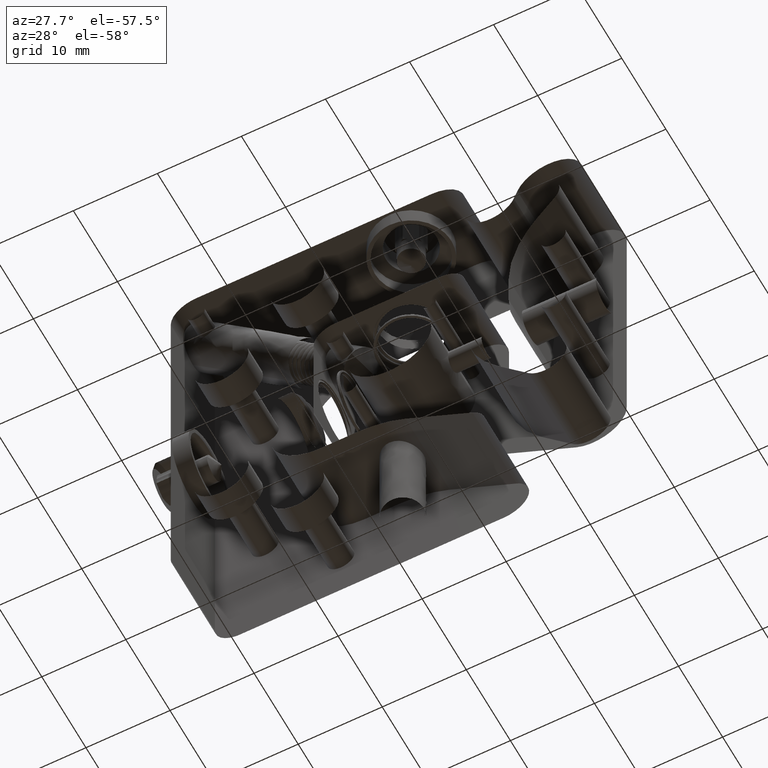
[diagram: clean part render]
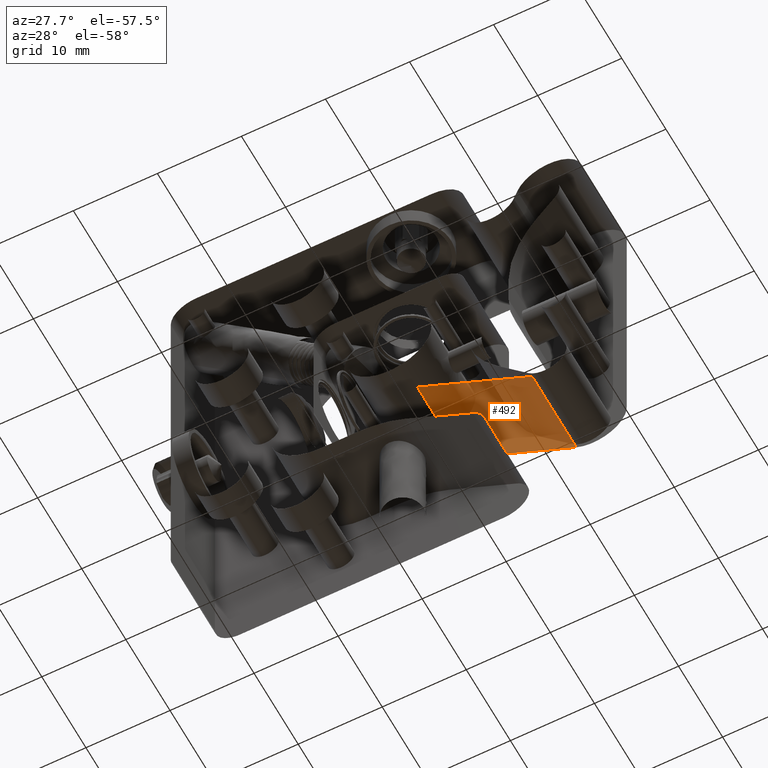
[diagram: same view with one face highlighted and labeled with its STEP entity id]
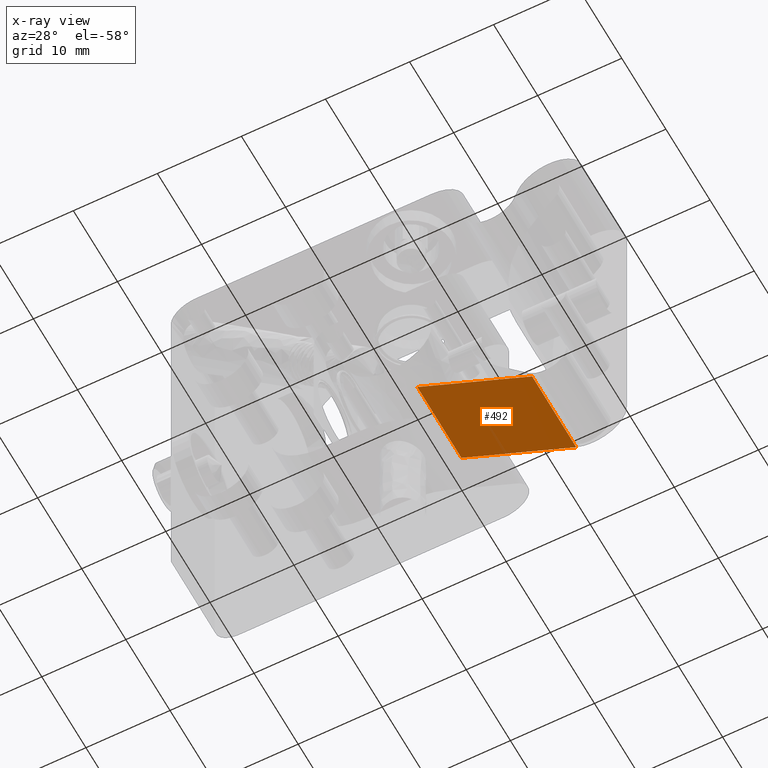
[diagram: x-ray of the same camera — body ghosted, the highlighted face saturated]
A machine part, auxiliary view. The second image highlights one B-rep face of the part: STEP entity #492.
The next image is the same camera in x-ray: the body ghosted, the highlighted face saturated — about 1% of this face is hidden behind the body in this view.
In plain terms, the highlighted face is a freeform B-spline surface patch.
Its self-contained STEP definition (entity closure, byte-faithful):
#492=ADVANCED_FACE('',(#773),#10298,.T.);
#773=FACE_OUTER_BOUND('',#1081,.T.);
#1081=EDGE_LOOP('',(#2175,#2176,#2177,#2178));
#2175=ORIENTED_EDGE('',*,*,#8830,.T.);
#2176=ORIENTED_EDGE('',*,*,#8831,.T.);
#2177=ORIENTED_EDGE('',*,*,#8832,.T.);
#2178=ORIENTED_EDGE('',*,*,#8828,.F.);
#3695=PCURVE('',#10448,#5218);
#3698=PCURVE('',#10298,#5221);
#3699=PCURVE('',#10298,#5222);
#3700=PCURVE('',#10298,#5223);
#3701=PCURVE('',#10298,#5224);
#3704=PCURVE('',#10449,#5227);
#3794=PCURVE('',#10307,#5317);
#3854=PCURVE('',#10308,#5377);
#5218=DEFINITIONAL_REPRESENTATION('',(#6929),#38234);
#5221=DEFINITIONAL_REPRESENTATION('',(#6933),#38234);
#5222=DEFINITIONAL_REPRESENTATION('',(#6935),#38234);
#5223=DEFINITIONAL_REPRESENTATION('',(#6937),#38234);
#5224=DEFINITIONAL_REPRESENTATION('',(#6938),#38234);
#5227=DEFINITIONAL_REPRESENTATION('',(#6942),#38234);
#5317=DEFINITIONAL_REPRESENTATION('',(#7035),#38234);
#5377=DEFINITIONAL_REPRESENTATION('',(#7054),#38234);
#6928=B_SPLINE_CURVE_WITH_KNOTS('',1,(#18635,#18636),.UNSPECIFIED.,.F.,
 .F.,(2,2),(-10.,0.),.UNSPECIFIED.);
#6929=B_SPLINE_CURVE_WITH_KNOTS('',1,(#18637,#18638),.UNSPECIFIED.,.F.,
 .F.,(2,2),(-10.,0.),.UNSPECIFIED.);
#6932=B_SPLINE_CURVE_WITH_KNOTS('',1,(#18648,#18649),.UNSPECIFIED.,.F.,
 .F.,(2,2),(0.,15.7790786806516),.UNSPECIFIED.);
#6933=B_SPLINE_CURVE_WITH_KNOTS('',1,(#18650,#18651),.UNSPECIFIED.,.F.,
 .F.,(2,2),(0.,15.7790786806516),.UNSPECIFIED.);
#6934=B_SPLINE_CURVE_WITH_KNOTS('',1,(#18652,#18653),.UNSPECIFIED.,.F.,
 .F.,(2,2),(-10.,0.),.UNSPECIFIED.);
#6935=B_SPLINE_CURVE_WITH_KNOTS('',1,(#18654,#18655),.UNSPECIFIED.,.F.,
 .F.,(2,2),(-10.,0.),.UNSPECIFIED.);
#6936=B_SPLINE_CURVE_WITH_KNOTS('',1,(#18656,#18657),.UNSPECIFIED.,.F.,
 .F.,(2,2),(0.,15.7790786806516),.UNSPECIFIED.);
#6937=B_SPLINE_CURVE_WITH_KNOTS('',1,(#18658,#18659),.UNSPECIFIED.,.F.,
 .F.,(2,2),(0.,15.7790786806516),.UNSPECIFIED.);
#6938=B_SPLINE_CURVE_WITH_KNOTS('',1,(#18660,#18661),.UNSPECIFIED.,.F.,
 .F.,(2,2),(-10.,0.),.UNSPECIFIED.);
#6942=B_SPLINE_CURVE_WITH_KNOTS('',1,(#18671,#18672),.UNSPECIFIED.,.F.,
 .F.,(2,2),(-10.,0.),.UNSPECIFIED.);
#7035=B_SPLINE_CURVE_WITH_KNOTS('',1,(#18983,#18984),.UNSPECIFIED.,.F.,
 .F.,(2,2),(0.,15.7790786806516),.UNSPECIFIED.);
#7054=B_SPLINE_CURVE_WITH_KNOTS('',1,(#19192,#19193),.UNSPECIFIED.,.F.,
 .F.,(2,2),(0.,15.7790786806516),.UNSPECIFIED.);
#8024=SURFACE_CURVE('',#6928,(#3695,#3701),.PCURVE_S1.);
#8026=SURFACE_CURVE('',#6932,(#3698,#3854),.PCURVE_S1.);
#8027=SURFACE_CURVE('',#6934,(#3699,#3704),.PCURVE_S1.);
#8028=SURFACE_CURVE('',#6936,(#3700,#3794),.PCURVE_S1.);
#8828=EDGE_CURVE('',#10086,#10087,#8024,.T.);
#8830=EDGE_CURVE('',#10086,#10088,#8026,.T.);
#8831=EDGE_CURVE('',#10088,#10089,#8027,.T.);
#8832=EDGE_CURVE('',#10089,#10087,#8028,.T.);
#10086=VERTEX_POINT('',#13646);
#10087=VERTEX_POINT('',#13647);
#10088=VERTEX_POINT('',#13648);
#10089=VERTEX_POINT('',#13649);
#10298=B_SPLINE_SURFACE_WITH_KNOTS('',1,1,((#13112,#13113),(#13114,#13115)),
 .UNSPECIFIED.,.F.,.F.,.F.,(2,2),(2,2),(-11.1200000000001,1.12000000000003),
(-17.5209095971709,1.74183091651931),.UNSPECIFIED.);
#10307=B_SPLINE_SURFACE_WITH_KNOTS('',1,1,((#13256,#13257),(#13258,#13259)),
 .UNSPECIFIED.,.F.,.F.,.F.,(2,2),(2,2),(-31.1921061117909,31.4478938882091),
(-31.7014055422227,27.3385944577773),.UNSPECIFIED.);
#10308=B_SPLINE_SURFACE_WITH_KNOTS('',1,1,((#13260,#13261),(#13262,#13263)),
 .UNSPECIFIED.,.F.,.F.,.F.,(2,2),(2,2),(-31.7014055422227,27.3385944577773),
(-31.1921061117909,31.4478938882091),.UNSPECIFIED.);
#10448=(
BOUNDED_SURFACE()
B_SPLINE_SURFACE(2,1,((#13094,#13095),(#13096,#13097),(#13098,#13099),(#13100,
#13101),(#13102,#13103),(#13104,#13105),(#13106,#13107),(#13108,#13109),
(#13110,#13111)),.UNSPECIFIED.,.T.,.F.,.F.)
B_SPLINE_SURFACE_WITH_KNOTS((3,2,2,2,3),(2,2),(0.,1.5707963267949,3.14159265358979,
4.71238898038469,6.28318530717959),(0.,12.24),.UNSPECIFIED.)
GEOMETRIC_REPRESENTATION_ITEM()
RATIONAL_B_SPLINE_SURFACE(((1.,1.),(0.707106781186548,0.707106781186548),
(1.,1.),(0.707106781186548,0.707106781186548),(1.,1.),(0.707106781186548,
0.707106781186548),(1.,1.),(0.707106781186548,0.707106781186548),(1.,1.)))
REPRESENTATION_ITEM('')
SURFACE()
);
#10449=(
BOUNDED_SURFACE()
B_SPLINE_SURFACE(1,2,((#13116,#13117,#13118,#13119,#13120,#13121,#13122,
#13123,#13124),(#13125,#13126,#13127,#13128,#13129,#13130,#13131,#13132,
#13133)),.UNSPECIFIED.,.F.,.F.,.F.)
B_SPLINE_SURFACE_WITH_KNOTS((2,2),(3,2,2,2,3),(0.,12.24),(0.,1.5707963267949,
3.14159265358979,4.71238898038469,6.28318530717959),.UNSPECIFIED.)
GEOMETRIC_REPRESENTATION_ITEM()
RATIONAL_B_SPLINE_SURFACE(((1.,0.707106781186548,1.,0.707106781186548,1.,
0.707106781186548,1.,0.707106781186548,1.),(1.,0.707106781186548,1.,0.707106781186548,
1.,0.707106781186548,1.,0.707106781186548,1.)))
REPRESENTATION_ITEM('')
SURFACE()
);
#13094=CARTESIAN_POINT('',(3.87027620806736,19.4358109790971,43.4167132204771));
#13095=CARTESIAN_POINT('',(3.87027620806738,19.4358109790971,55.6567132204771));
#13096=CARTESIAN_POINT('',(3.87027620806736,15.4358109790971,43.4167132204771));
#13097=CARTESIAN_POINT('',(3.87027620806737,15.4358109790971,55.6567132204771));
#13098=CARTESIAN_POINT('',(7.87027620806737,15.4358109790971,43.4167132204771));
#13099=CARTESIAN_POINT('',(7.87027620806737,15.4358109790971,55.6567132204771));
#13100=CARTESIAN_POINT('',(11.8702762080674,15.4358109790971,43.4167132204771));
#13101=CARTESIAN_POINT('',(11.8702762080674,15.4358109790971,55.6567132204771));
#13102=CARTESIAN_POINT('',(11.8702762080674,19.4358109790971,43.4167132204771));
#13103=CARTESIAN_POINT('',(11.8702762080674,19.4358109790971,55.6567132204771));
#13104=CARTESIAN_POINT('',(11.8702762080674,23.4358109790971,43.4167132204771));
#13105=CARTESIAN_POINT('',(11.8702762080674,23.4358109790971,55.6567132204771));
#13106=CARTESIAN_POINT('',(7.87027620806737,23.4358109790971,43.4167132204771));
#13107=CARTESIAN_POINT('',(7.87027620806739,23.4358109790971,55.6567132204771));
#13108=CARTESIAN_POINT('',(3.87027620806737,23.4358109790971,43.4167132204771));
#13109=CARTESIAN_POINT('',(3.87027620806739,23.4358109790971,55.6567132204771));
#13110=CARTESIAN_POINT('',(3.87027620806736,19.4358109790971,43.4167132204771));
#13111=CARTESIAN_POINT('',(3.87027620806738,19.4358109790971,55.6567132204771));
#13112=CARTESIAN_POINT('',(-9.30327660049323,24.7321641625449,55.6567132204772));
#13113=CARTESIAN_POINT('',(7.37874603087023,15.1007939056997,55.6567132204772));
#13114=CARTESIAN_POINT('',(-9.30327660049324,24.7321641625449,43.4167132204771));
#13115=CARTESIAN_POINT('',(7.37874603087022,15.1007939056997,43.4167132204771));
#13116=CARTESIAN_POINT('',(-1.7948067776904,13.4689438588719,43.4167132204772));
#13117=CARTESIAN_POINT('',(-1.7948067776904,25.4689438588719,43.4167132204772));
#13118=CARTESIAN_POINT('',(-13.7948067776904,25.4689438588719,43.4167132204772));
#13119=CARTESIAN_POINT('',(-25.7948067776904,25.4689438588719,43.4167132204772));
#13120=CARTESIAN_POINT('',(-25.7948067776904,13.4689438588719,43.4167132204772));
#13121=CARTESIAN_POINT('',(-25.7948067776904,1.4689438588719,43.4167132204772));
#13122=CARTESIAN_POINT('',(-13.7948067776904,1.4689438588719,43.4167132204772));
#13123=CARTESIAN_POINT('',(-1.79480677769041,1.4689438588719,43.4167132204772));
#13124=CARTESIAN_POINT('',(-1.7948067776904,13.4689438588719,43.4167132204772));
#13125=CARTESIAN_POINT('',(-1.79480677769039,13.4689438588719,55.6567132204772));
#13126=CARTESIAN_POINT('',(-1.7948067776904,25.4689438588719,55.6567132204772));
#13127=CARTESIAN_POINT('',(-13.7948067776904,25.4689438588719,55.6567132204772));
#13128=CARTESIAN_POINT('',(-25.7948067776904,25.4689438588719,55.6567132204773));
#13129=CARTESIAN_POINT('',(-25.7948067776904,13.4689438588719,55.6567132204772));
#13130=CARTESIAN_POINT('',(-25.7948067776904,1.46894385887188,55.6567132204772));
#13131=CARTESIAN_POINT('',(-13.7948067776904,1.46894385887189,55.6567132204772));
#13132=CARTESIAN_POINT('',(-1.79480677769038,1.4689438588719,55.6567132204772));
#13133=CARTESIAN_POINT('',(-1.79480677769039,13.4689438588719,55.6567132204772));
#13256=CARTESIAN_POINT('',(-42.1497237919326,3.1489438588719,44.5367132204772));
#13257=CARTESIAN_POINT('',(16.8902762080674,3.1489438588719,44.5367132204771));
#13258=CARTESIAN_POINT('',(-42.1497237919326,65.7889438588719,44.5367132204773));
#13259=CARTESIAN_POINT('',(16.8902762080674,65.7889438588719,44.5367132204772));
#13260=CARTESIAN_POINT('',(-42.1497237919326,3.1489438588719,54.5367132204772));
#13261=CARTESIAN_POINT('',(-42.1497237919326,65.7889438588719,54.5367132204773));
#13262=CARTESIAN_POINT('',(16.8902762080674,3.1489438588719,54.5367132204771));
#13263=CARTESIAN_POINT('',(16.8902762080674,65.7889438588719,54.5367132204772));
#13646=CARTESIAN_POINT('',(5.87027620806736,15.9717093639594,54.5367132204771));
#13647=CARTESIAN_POINT('',(5.87027620806736,15.9717093639594,44.5367132204771));
#13648=CARTESIAN_POINT('',(-7.79480677769039,23.8612487042852,54.5367132204772));
#13649=CARTESIAN_POINT('',(-7.79480677769039,23.8612487042852,44.5367132204772));
#18635=CARTESIAN_POINT('',(5.87027620806736,15.9717093639594,54.5367132204771));
#18636=CARTESIAN_POINT('',(5.87027620806736,15.9717093639594,44.5367132204771));
#18637=CARTESIAN_POINT('',(1.03502695203352,11.12));
#18638=CARTESIAN_POINT('',(1.03502695203352,1.12000000000002));
#18648=CARTESIAN_POINT('',(5.87027620806736,15.9717093639594,54.5367132204771));
#18649=CARTESIAN_POINT('',(-7.79480677769039,23.8612487042852,54.5367132204772));
#18650=CARTESIAN_POINT('',(-10.,-4.42977095779045E-15));
#18651=CARTESIAN_POINT('',(-10.0000000000001,-15.7790786806516));
#18652=CARTESIAN_POINT('',(-7.79480677769039,23.8612487042852,54.5367132204772));
#18653=CARTESIAN_POINT('',(-7.79480677769039,23.8612487042852,44.5367132204772));
#18654=CARTESIAN_POINT('',(-10.0000000000001,-15.7790786806516));
#18655=CARTESIAN_POINT('',(-8.67035659624121E-14,-15.7790786806516));
#18656=CARTESIAN_POINT('',(-7.79480677769039,23.8612487042852,44.5367132204772));
#18657=CARTESIAN_POINT('',(5.87027620806736,15.9717093639594,44.5367132204771));
#18658=CARTESIAN_POINT('',(-8.67035659624121E-14,-15.7790786806516));
#18659=CARTESIAN_POINT('',(0.,0.));
#18660=CARTESIAN_POINT('',(-10.,-4.42977095779045E-15));
#18661=CARTESIAN_POINT('',(0.,0.));
#18671=CARTESIAN_POINT('',(11.12,1.03502695203352));
#18672=CARTESIAN_POINT('',(1.12,1.03502695203352));
#18983=CARTESIAN_POINT('',(-10.4798012663776,2.6535114720195));
#18984=CARTESIAN_POINT('',(-18.3693406067034,16.3185944577773));
#19192=CARTESIAN_POINT('',(16.3185944577773,-18.3693406067034));
#19193=CARTESIAN_POINT('',(2.65351147201951,-10.4798012663776));
#38234=(
GEOMETRIC_REPRESENTATION_CONTEXT(2)
PARAMETRIC_REPRESENTATION_CONTEXT()
REPRESENTATION_CONTEXT('pspace','')
);